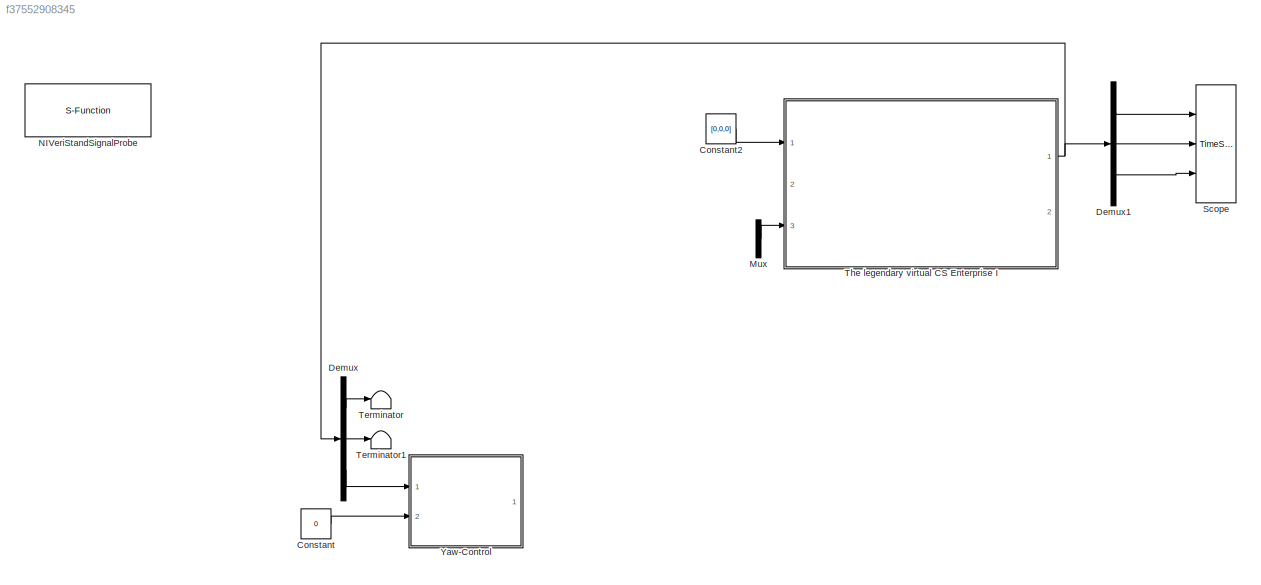
MODEL slx_f37552908345
KIND model
CONFIG AbsTol = auto
CONFIG FixedStep = 0.01
CONFIG MaxStep = auto
CONFIG MinStep = auto
CONFIG RelTol = 1e-3
CONFIG SampleTimeConstraint = Unconstrained
CONFIG Solver = ode4
CONFIG SolverMode = Auto
CONFIG SolverName = ode4
CONFIG StartTime = 0.0
CONFIG StopTime = inf
BLOCK [Constant] Constant
  Value = 0
BLOCK [Constant] Constant2
  Value = [0,0,0]
BLOCK [Demux] Demux
  DisplayOption = bar
  Outputs = 3
  Ports = [1, 3]
BLOCK [Demux] Demux1
  DisplayOption = bar
  Outputs = 3
  Ports = [1, 3]
BLOCK [Mux] Mux
  DisplayOption = bar
  Inputs = 3
  Ports = [3, 1]
BLOCK [S-Function] NIVeriStandSignalProbe
  FunctionName = NIVeriStandSignalProbe
  Parameters = 1
  Ports = []
BLOCK [TimeScope] Scope
  NumInputPorts = 3
  Ports = [3]
  ScopeSpecificationString = Simulink.scopes.TimeScopeBlockCfg('CurrentConfiguration', extmgr.ConfigurationSet(extmgr.Configuration('Core','General UI',true),extmgr.Configuration('Core','Source UI',true),extmgr.Configuration('Sources','WiredSimulink',true,'DataLoggingDecimation','1','DataLoggingDecimateData',true,'DataLoggingSaveFormat','Array'),extmgr.Configuration('Visuals','Time Domain',true,'SerializedDisplays',{struct('M...<+2973ch>
BLOCK [Terminator] Terminator
BLOCK [Terminator] Terminator1
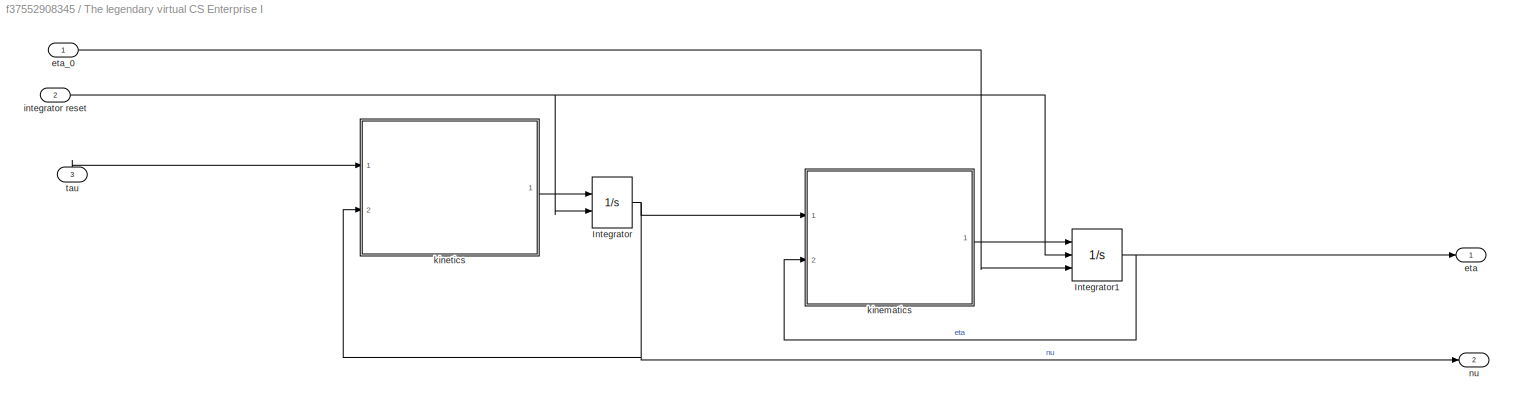
BLOCK [SubSystem] The legendary virtual CS Enterprise I
  Ports = [3, 2]
  RequestExecContextInheritance = off
BLOCK [Integrator] The legendary virtual CS Enterprise I/Integrator
  ExternalReset = rising
  InitialCondition = [0 0 0]'
  Ports = [2, 1]
BLOCK [Integrator] The legendary virtual CS Enterprise I/Integrator1
  ExternalReset = rising
  InitialCondition = [0 0 0]'
  InitialConditionSource = external
  Ports = [3, 1]
BLOCK [Outport] The legendary virtual CS Enterprise I/eta
  IconDisplay = Port number
BLOCK [Inport] The legendary virtual CS Enterprise I/eta_0
  IconDisplay = Port number
BLOCK [Inport] The legendary virtual CS Enterprise I/integrator reset
  IconDisplay = Port number
  Port = 2
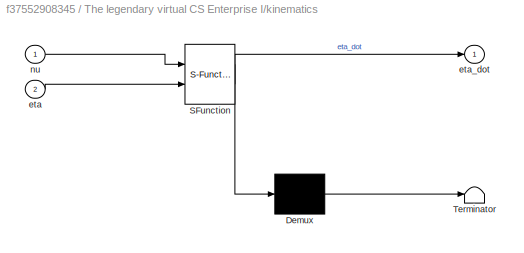
BLOCK [SubSystem] The legendary virtual CS Enterprise I/kinematics
  ErrorFcn = Stateflow.Translate.translate
  PermitHierarchicalResolution = ExplicitOnly
  Ports = [2, 1]
  RequestExecContextInheritance = off
  SFBlockType = MATLAB Function
  TreatAsAtomicUnit = on
BLOCK [Demux] The legendary virtual CS Enterprise I/kinematics/ Demux 
  Outputs = 1
  Ports = [1, 1]
BLOCK [S-Function] The legendary virtual CS Enterprise I/kinematics/ SFunction 
  EnableBusSupport = on
  FunctionName = sf_sfun
  PortCounts = [2 2]
  Ports = [2, 2]
  Tag = Stateflow S-Function ctrl_student_caseb 3
BLOCK [Terminator] The legendary virtual CS Enterprise I/kinematics/ Terminator 
BLOCK [Inport] The legendary virtual CS Enterprise I/kinematics/eta
  IconDisplay = Port number
  Port = 2
BLOCK [Outport] The legendary virtual CS Enterprise I/kinematics/eta_dot
  IconDisplay = Port number
BLOCK [Inport] The legendary virtual CS Enterprise I/kinematics/nu
  IconDisplay = Port number
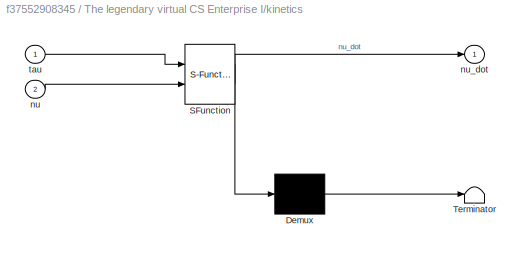
BLOCK [SubSystem] The legendary virtual CS Enterprise I/kinetics
  ErrorFcn = Stateflow.Translate.translate
  PermitHierarchicalResolution = ExplicitOnly
  Ports = [2, 1]
  RequestExecContextInheritance = off
  SFBlockType = MATLAB Function
  TreatAsAtomicUnit = on
BLOCK [Demux] The legendary virtual CS Enterprise I/kinetics/ Demux 
  Outputs = 1
  Ports = [1, 1]
BLOCK [S-Function] The legendary virtual CS Enterprise I/kinetics/ SFunction 
  EnableBusSupport = on
  FunctionName = sf_sfun
  PortCounts = [2 2]
  Ports = [2, 2]
  Tag = Stateflow S-Function ctrl_student_caseb 4
BLOCK [Terminator] The legendary virtual CS Enterprise I/kinetics/ Terminator 
BLOCK [Inport] The legendary virtual CS Enterprise I/kinetics/nu
  IconDisplay = Port number
  Port = 2
BLOCK [Outport] The legendary virtual CS Enterprise I/kinetics/nu_dot
  IconDisplay = Port number
BLOCK [Inport] The legendary virtual CS Enterprise I/kinetics/tau
  IconDisplay = Port number
BLOCK [Outport] The legendary virtual CS Enterprise I/nu
  IconDisplay = Port number
  Port = 2
BLOCK [Inport] The legendary virtual CS Enterprise I/tau
  IconDisplay = Port number
  Port = 3
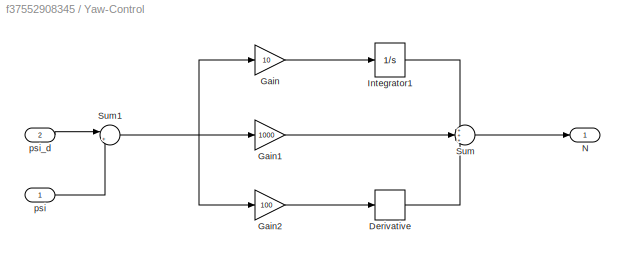
BLOCK [SubSystem] Yaw-Control
  Ports = [2, 1]
  RequestExecContextInheritance = off
BLOCK [Derivative] Yaw-Control/Derivative
BLOCK [Gain] Yaw-Control/Gain
  Gain = 10
  OutDataTypeStr = Inherit: Inherit via internal rule
  ParamDataTypeStr = Inherit: Inherit via internal rule
  SaturateOnIntegerOverflow = off
BLOCK [Gain] Yaw-Control/Gain1
  Gain = 1000
  OutDataTypeStr = Inherit: Inherit via internal rule
  ParamDataTypeStr = Inherit: Inherit via internal rule
  SaturateOnIntegerOverflow = off
BLOCK [Gain] Yaw-Control/Gain2
  Gain = 100
  OutDataTypeStr = Inherit: Inherit via internal rule
  ParamDataTypeStr = Inherit: Inherit via internal rule
  SaturateOnIntegerOverflow = off
BLOCK [Integrator] Yaw-Control/Integrator1
  Ports = [1, 1]
BLOCK [Outport] Yaw-Control/N
  IconDisplay = Port number
BLOCK [Sum] Yaw-Control/Sum
  IconShape = round
  InputSameDT = off
  Inputs = +++
  OutDataTypeStr = Inherit: Inherit via internal rule
  Ports = [3, 1]
  SaturateOnIntegerOverflow = off
BLOCK [Sum] Yaw-Control/Sum1
  IconShape = round
  InputSameDT = off
  Inputs = |+-
  OutDataTypeStr = Inherit: Inherit via internal rule
  Ports = [2, 1]
  SaturateOnIntegerOverflow = off
BLOCK [Inport] Yaw-Control/psi
  IconDisplay = Port number
BLOCK [Inport] Yaw-Control/psi_d
  IconDisplay = Port number
  Port = 2
LINE Constant2:1 -> The legendary virtual CS Enterprise I:1
LINE Constant:1 -> Yaw-Control:2
LINE Demux1:1 -> Scope:1
LINE Demux1:2 -> Scope:2
LINE Demux1:3 -> Scope:3
LINE Demux:1 -> Terminator:1
LINE Demux:2 -> Terminator1:1
LINE Demux:3 -> Yaw-Control:1
LINE Mux:1 -> The legendary virtual CS Enterprise I:3
NET The legendary virtual CS Enterprise I/Integrator1:1 -> The legendary virtual CS Enterprise I/eta:1, The legendary virtual CS Enterprise I/kinematics:2
NET The legendary virtual CS Enterprise I/Integrator:1 -> The legendary virtual CS Enterprise I/kinematics:1, The legendary virtual CS Enterprise I/kinetics:2, The legendary virtual CS Enterprise I/nu:1
LINE The legendary virtual CS Enterprise I/eta_0:1 -> The legendary virtual CS Enterprise I/Integrator1:3
NET The legendary virtual CS Enterprise I/integrator reset:1 -> The legendary virtual CS Enterprise I/Integrator1:2, The legendary virtual CS Enterprise I/Integrator:2
LINE The legendary virtual CS Enterprise I/kinematics:1 -> The legendary virtual CS Enterprise I/Integrator1:1
LINE The legendary virtual CS Enterprise I/kinetics:1 -> The legendary virtual CS Enterprise I/Integrator:1
LINE The legendary virtual CS Enterprise I/tau:1 -> The legendary virtual CS Enterprise I/kinetics:1
NET The legendary virtual CS Enterprise I:1 -> Demux1:1, Demux:1
LINE Yaw-Control/Derivative:1 -> Yaw-Control/Sum:3
LINE Yaw-Control/Gain1:1 -> Yaw-Control/Sum:2
LINE Yaw-Control/Gain2:1 -> Yaw-Control/Derivative:1
LINE Yaw-Control/Gain:1 -> Yaw-Control/Integrator1:1
LINE Yaw-Control/Integrator1:1 -> Yaw-Control/Sum:1
NET Yaw-Control/Sum1:1 -> Yaw-Control/Gain1:1, Yaw-Control/Gain2:1, Yaw-Control/Gain:1
LINE Yaw-Control/Sum:1 -> Yaw-Control/N:1
LINE Yaw-Control/psi:1 -> Yaw-Control/Sum1:2
LINE Yaw-Control/psi_d:1 -> Yaw-Control/Sum1:1
note: NET lines group one-source signal fan-out (src -> all destinations, sorted); 1:1 wires keep LINE
CHART The legendary virtual CS Enterprise I/kinematics states=1 transitions=1
  STATE_LABEL 'eML_blk_kernel()'
  STATE_LABEL 'SCRIPT:\nfunction eta_dot = CSE1_eta_dot(nu,eta)\n\npsi = eta(3);\n\nJ = [cos(psi) -sin(psi) 0\n     sin(psi) cos(psi)  0\n     0        0         1];\n\neta_dot = J*nu;'
CHART The legendary virtual CS Enterprise I/kinetics states=1 transitions=1
  STATE_LABEL 'eML_blk_kernel()'
  STATE_LABEL 'SCRIPT:\nfunction nu_dot = CSE1_nu_dot(tau,nu)\n\nu   = nu(1);\nv   = nu(2);\nr   = nu(3);\n\ntau = [tau(1);tau(2);tau(3)];\n%% MATRICES\n\nm    = 14.79;   I_z  =  1.7600;   x_g = 0.0375;       % x_g  =  0.0460; % Table B.1\n\n\n%% Added mass\nX_ud  =     -2.0;\t\t\t\t\t\t\t\t\t\t\t% Table B.1\n\t\t\t\t\tY_vd =     -10.0;\tN_vd =    -0.0;\t\t% Table B.1\n\t\t\t\t\tY_rd =      -0.0;\tN_rd =    -1.0;\t\t% Table B.1\n\n%% Total mass matrix\nm_11...<+1275ch>'
